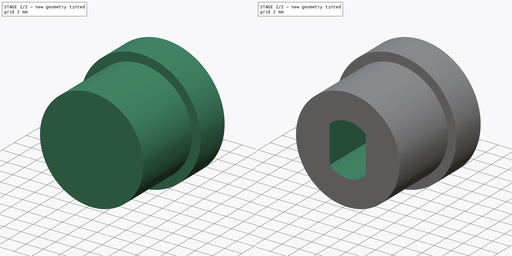
[diagram: build sequence overview — one tinted view per stage of 2, left to right]
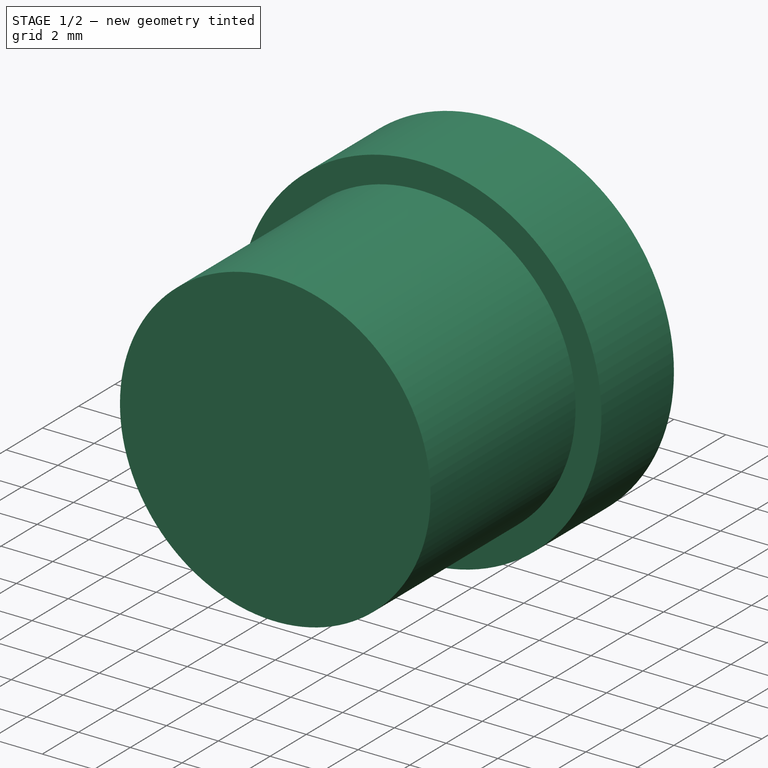
[diagram: stage 1 of 2 — iso view after this stage's code; geometry added in this stage tinted green]
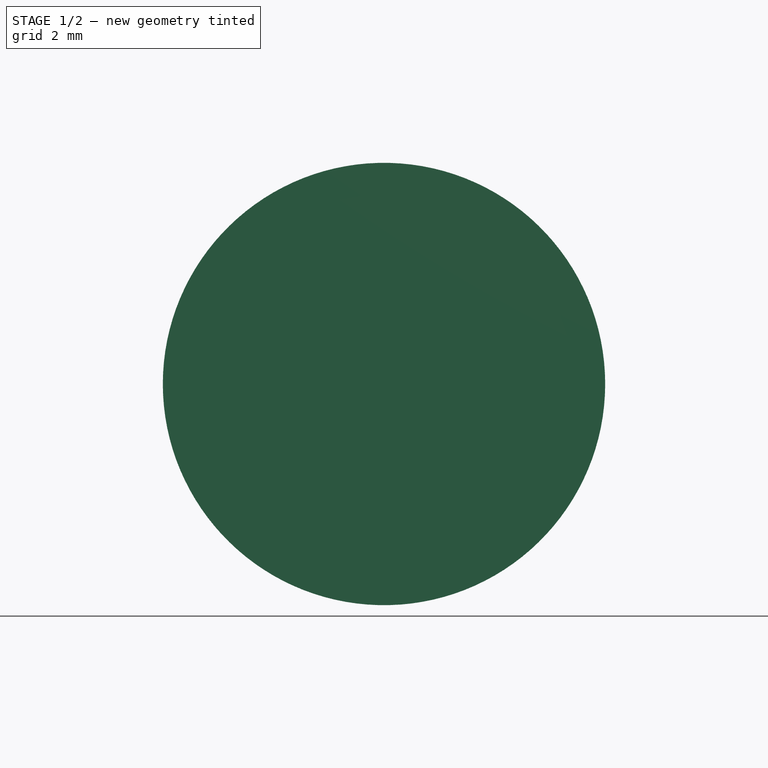
[diagram: stage 1 of 2 — front view after this stage's code; geometry added in this stage tinted green]
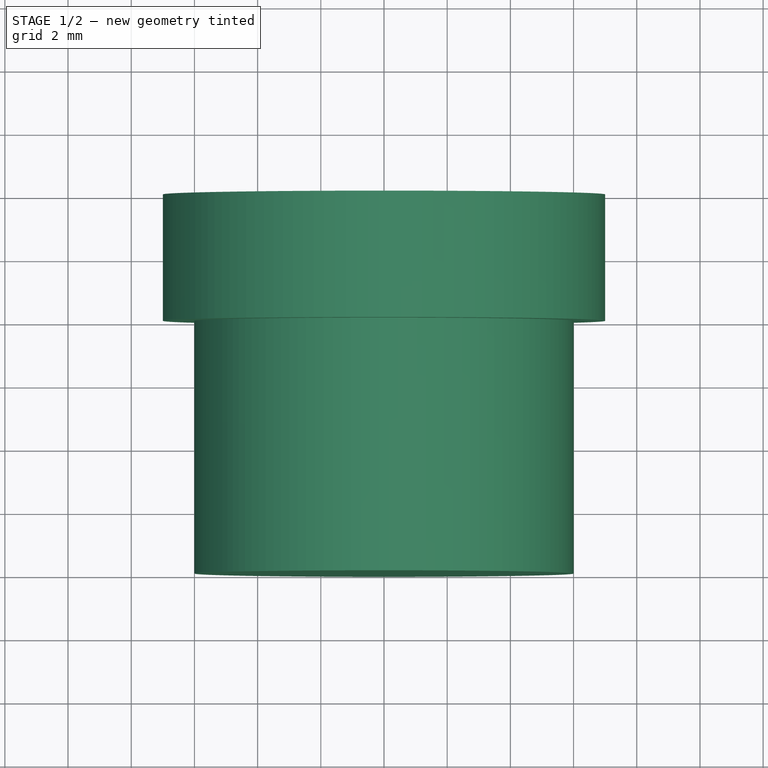
[diagram: stage 1 of 2 — top view after this stage's code; geometry added in this stage tinted green]
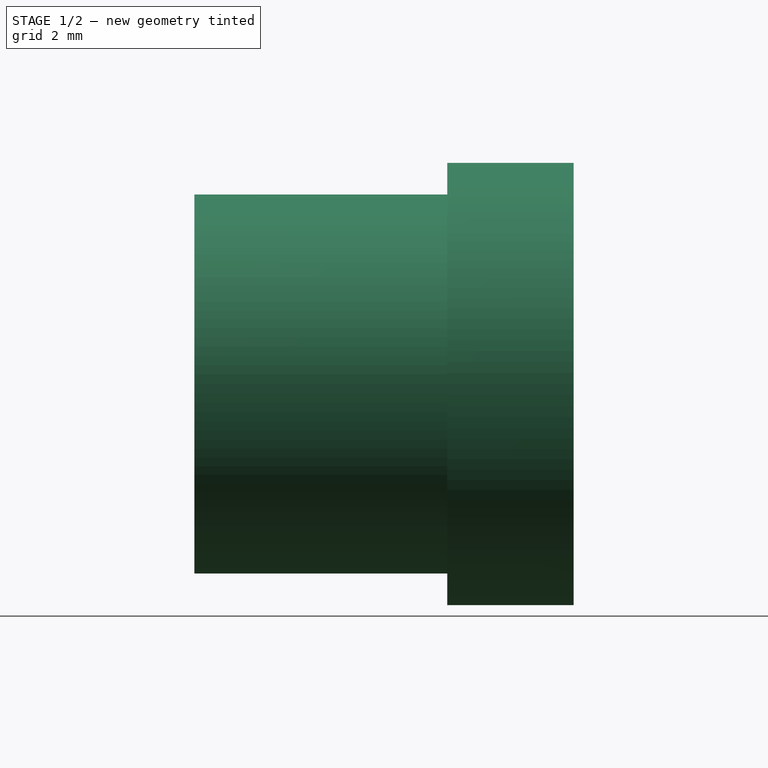
[diagram: stage 1 of 2 — right view after this stage's code; geometry added in this stage tinted green]
FCSTD DOCUMENT  (FreeCAD 1.0R38641 +678 (Git))
Label: sleeve-part1
License: All rights reserved
LicenseURL: https://en.wikipedia.org/wiki/All_rights_reserved
objects: Sketcher::SketchObject×3, PartDesign::Pad×2, PartDesign::Pocket×1, PartDesign::Body×1
note: 16 computed .brp shape members not serialized (recipe doc carries the construction recipe); baked Part::Feature solids carry a one-line shape summary decoded from their .brp

FEATURE [Sketcher::SketchObject] Sketch159
  ArcFitTolerance = 0
  AttachmentSupport = -> [XZ_Plane020]
  FullyConstrained = true
  MakeInternals = false
  MapMode = 5
  Placement = pos=(0,0,0) rot=(1,0,0;1.5708rad)
  sketch-geometry (8):
    g0: LineSegment StartX=5.25 StartY=0 StartZ=0 EndX=2.625 EndY=4.54663 EndZ=0
    g1: LineSegment StartX=2.625 StartY=4.54663 StartZ=0 EndX=-2.625 EndY=4.54663 EndZ=0
    g2: LineSegment StartX=-2.625 StartY=4.54663 StartZ=0 EndX=-5.25 EndY=-1.09823e-11 EndZ=0
    g3: LineSegment StartX=-5.25 StartY=-1.09823e-11 StartZ=0 EndX=-2.625 EndY=-4.54663 EndZ=0
    g4: LineSegment StartX=-2.625 StartY=-4.54663 StartZ=0 EndX=2.625 EndY=-4.54663 EndZ=0
    g5: LineSegment StartX=2.625 StartY=-4.54663 StartZ=0 EndX=5.25 EndY=0 EndZ=0
    g6: Circle [constr] CenterX=0 CenterY=0 CenterZ=0 NormalX=0 NormalY=0 NormalZ=1 AngleXU=0 Radius=5.25
    g7: Circle CenterX=0 CenterY=0 CenterZ=0 NormalX=0 NormalY=0 NormalZ=1 AngleXU=0 Radius=7
  constraints (19):
    c: Coincident(g0,g1)
    c: Coincident(g1,g2)
    c: Coincident(g2,g3)
    c: Coincident(g3,g4)
    c: Coincident(g4,g5)
    c: Coincident(g5,g0)
    c: Equal(g0, g1-g5) x5
    c: PointOnObject(g0,g6)
    c: PointOnObject(g1,g6)
    c: PointOnObject(g2,g6)
    c: PointOnObject(g3,g6)
    c: PointOnObject(g4,g6)
    c: PointOnObject(g5,g6)
    c: Coincident(g6,g-1)
    c: Diameter(g6) = 10.5
    c: PointOnObject(g0,g-1)
    c: Diameter(g7) = 14
    c: DistanceY(g-1,g7) = 0
    c: DistanceX(g-2,g7) = 0
FEATURE [PartDesign::Pad] Pad068
  Direction = (0,-1,2e-16)
  Length = 4
  Length2 = 10
  Placement = pos=(0,0,0) rot=(1,0,0;1.5708rad)
  Profile = -> Sketch159
  ReferenceAxis = -> Sketch159 [N_Axis]
  Suppressed = false
  Type = 0
FEATURE [Sketcher::SketchObject] Sketch160
  ArcFitTolerance = 0
  AttachmentSupport = -> [Pad068]
  FullyConstrained = true
  MakeInternals = false
  MapMode = 5
  Placement = pos=(0,-4,0) rot=(1,0,0;1.5708rad)
  sketch-geometry (1):
    g0: Circle CenterX=0 CenterY=0 CenterZ=0 NormalX=0 NormalY=0 NormalZ=1 AngleXU=0 Radius=6
  constraints (2):
    c: Diameter(g0) = 12
    c: Coincident(g0,g-1)
FEATURE [PartDesign::Pad] Pad069
  BaseFeature = -> Pad068
  Direction = (0,-1,2e-16)
  Length = 8
  Length2 = 10
  Placement = pos=(0,0,0) rot=(1,0,0;1.5708rad)
  Profile = -> Sketch160
  ReferenceAxis = -> Sketch160 [N_Axis]
  Suppressed = false
  Type = 0
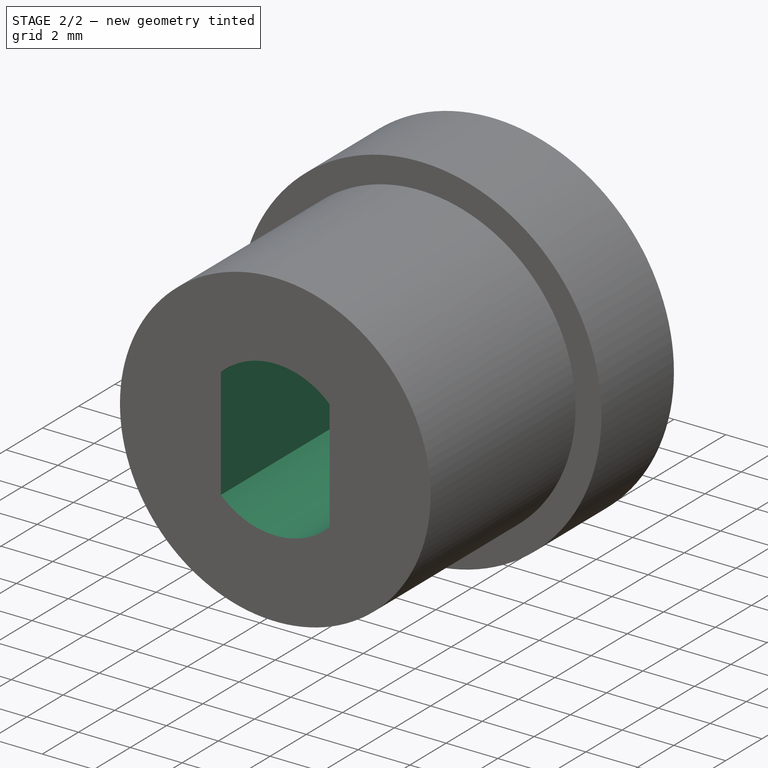
[diagram: stage 2 of 2 — iso view after this stage's code; geometry added in this stage tinted green]
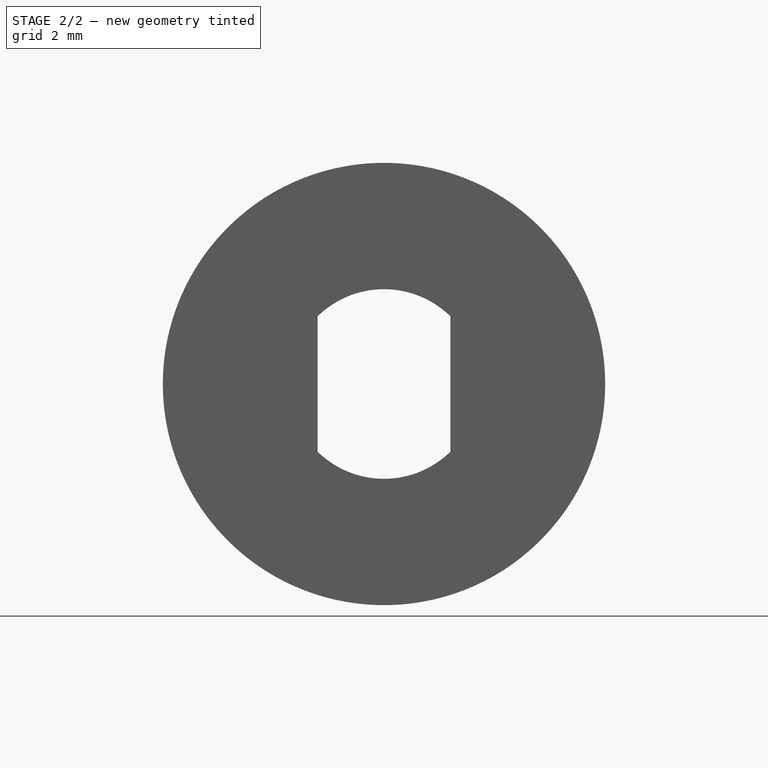
[diagram: stage 2 of 2 — front view after this stage's code; geometry added in this stage tinted green]
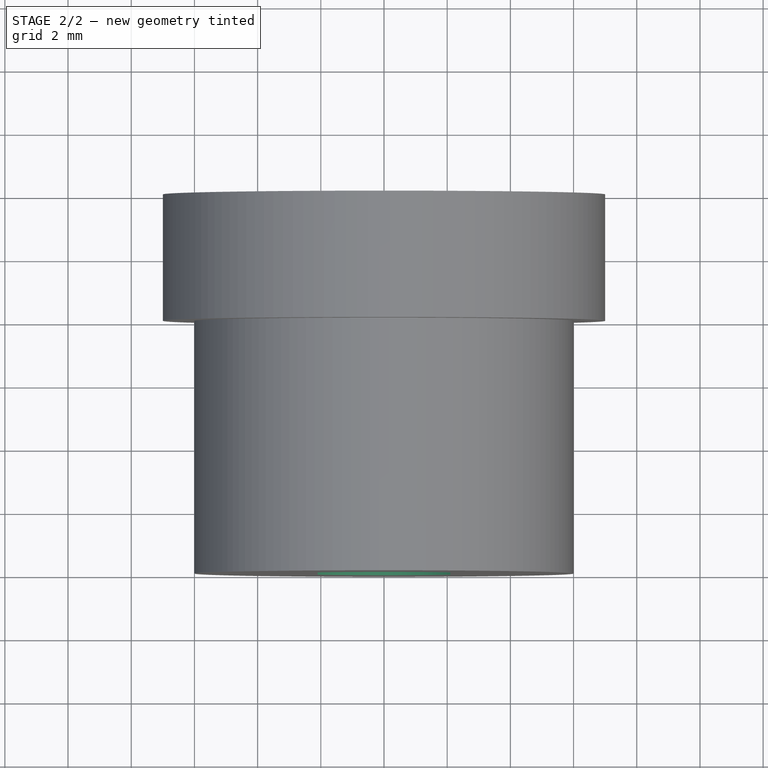
[diagram: stage 2 of 2 — top view after this stage's code; geometry added in this stage tinted green]
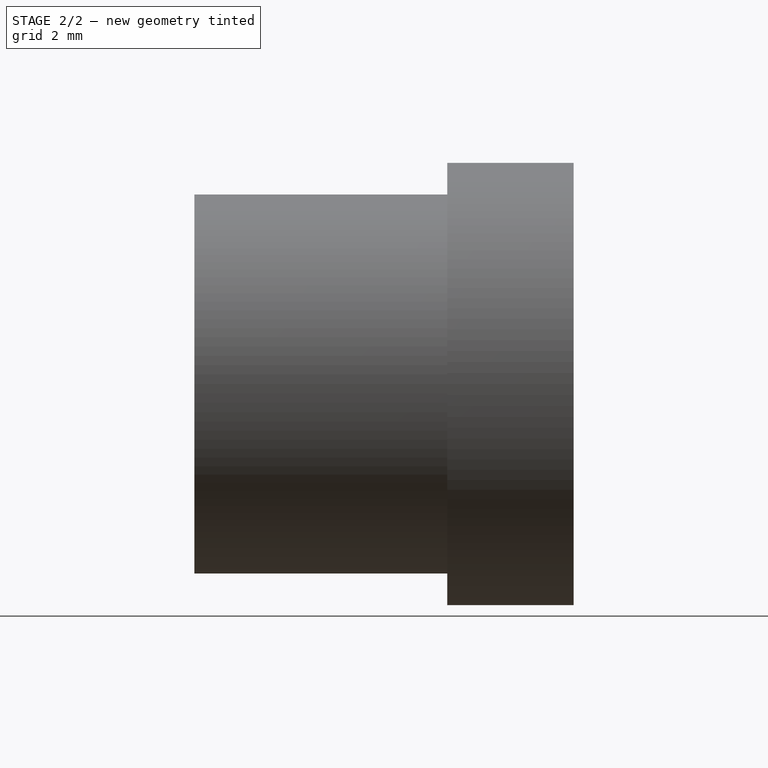
[diagram: stage 2 of 2 — right view after this stage's code; geometry added in this stage tinted green]
FEATURE [Sketcher::SketchObject] Sketch162
  ArcFitTolerance = 0
  AttachmentSupport = -> [Pad069]
  FullyConstrained = true
  MakeInternals = false
  MapMode = 5
  Placement = pos=(0,-12,0) rot=(1,0,0;1.5708rad)
  sketch-geometry (4):
    g0: ArcOfCircle CenterX=0 CenterY=0 CenterZ=0 NormalX=0 NormalY=0 NormalZ=1 AngleXU=0 Radius=3 StartAngle=0.795399 EndAngle=2.34619
    g1: LineSegment StartX=-2.1 StartY=2.14243 StartZ=0 EndX=-2.1 EndY=-2.14243 EndZ=0
    g2: LineSegment StartX=2.1 StartY=2.14243 StartZ=0 EndX=2.1 EndY=-2.14243 EndZ=0
    g3: ArcOfCircle CenterX=0 CenterY=0 CenterZ=0 NormalX=0 NormalY=0 NormalZ=1 AngleXU=0 Radius=3 StartAngle=3.93699 EndAngle=5.48779
  constraints (12):
    c: Coincident(g0,g-1)
    c: Diameter(g0) = 6
    c: Vertical(g1)
    c: Vertical(g2)
    c: Distance(g0,g1) = 2.1
    c: Distance(g0,g2) = 2.1
    c: Coincident(g3,g2)
    c: Coincident(g0,g2)
    c: Equal(g0,g3)
    c: Coincident(g0,g1)
    c: Coincident(g3,g1)
    c: Coincident(g0,g3)
FEATURE [PartDesign::Pocket] Pocket068
  BaseFeature = -> Pad069
  Direction = (0,1,-2e-16)
  Length = 20
  Length2 = 5
  Placement = pos=(0,0,0) rot=(1,0,0;1.5708rad)
  Profile = -> Sketch162
  ReferenceAxis = -> Sketch162 [N_Axis]
  Suppressed = false
  Type = 0
FEATURE [PartDesign::Body] Body020  label="sleeve-part1"
  AllowCompound = false
  Group = -> [Sketch159,Pad068,Sketch160,Pad069,Sketch162,Pocket068]
  Origin = -> Origin020
  Placement = pos=(0.5,-102.866,17) rot=(0.935113,0.250563,0.250563;1.63783rad)
  Tip = -> Pocket068
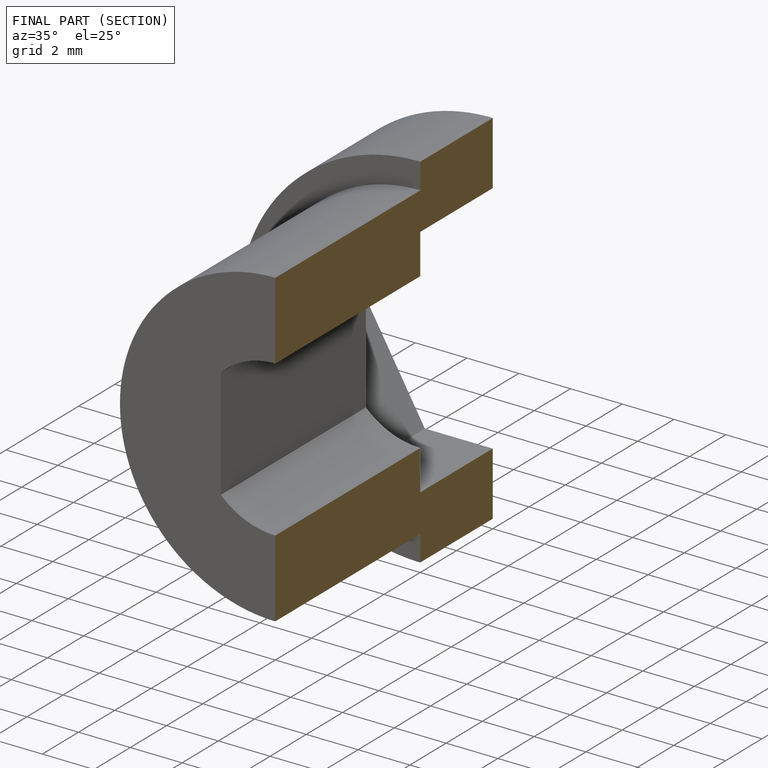
[diagram: finished part — half-section view (interior)]
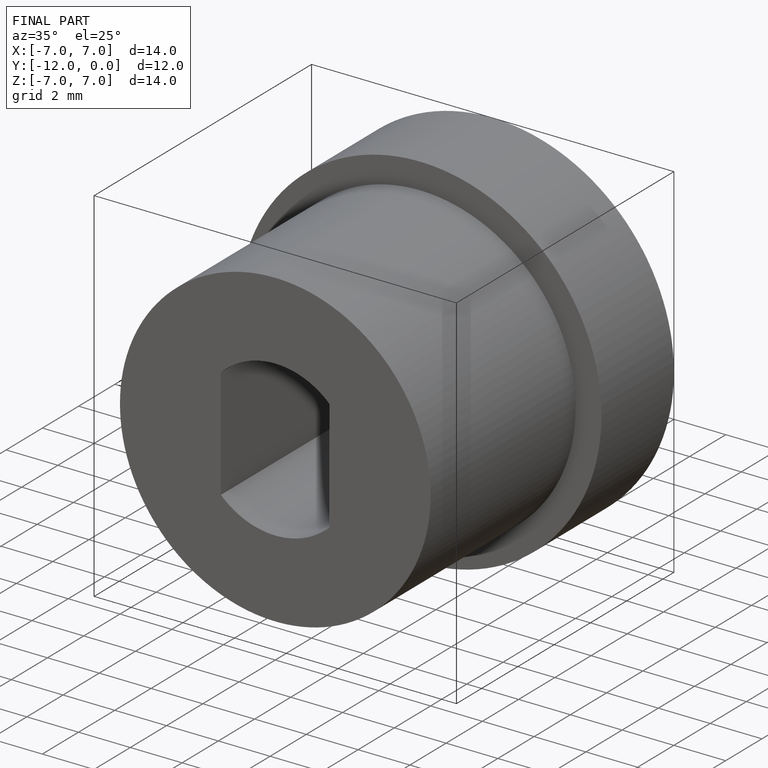
[diagram: finished part — iso view with bounding-box wireframe]
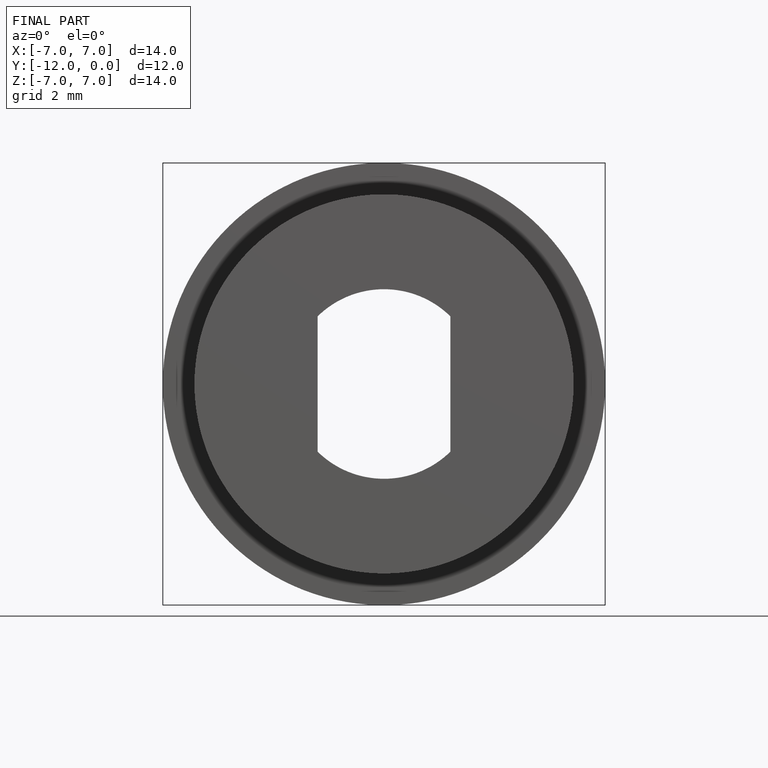
[diagram: finished part — front view with bounding-box wireframe]
